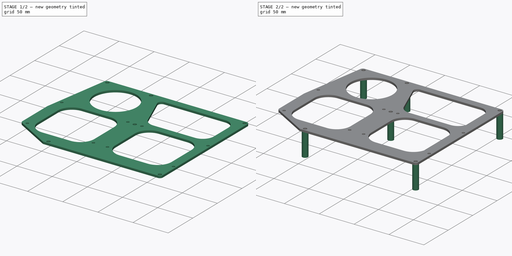
[diagram: build sequence overview — one tinted view per stage of 2, left to right]
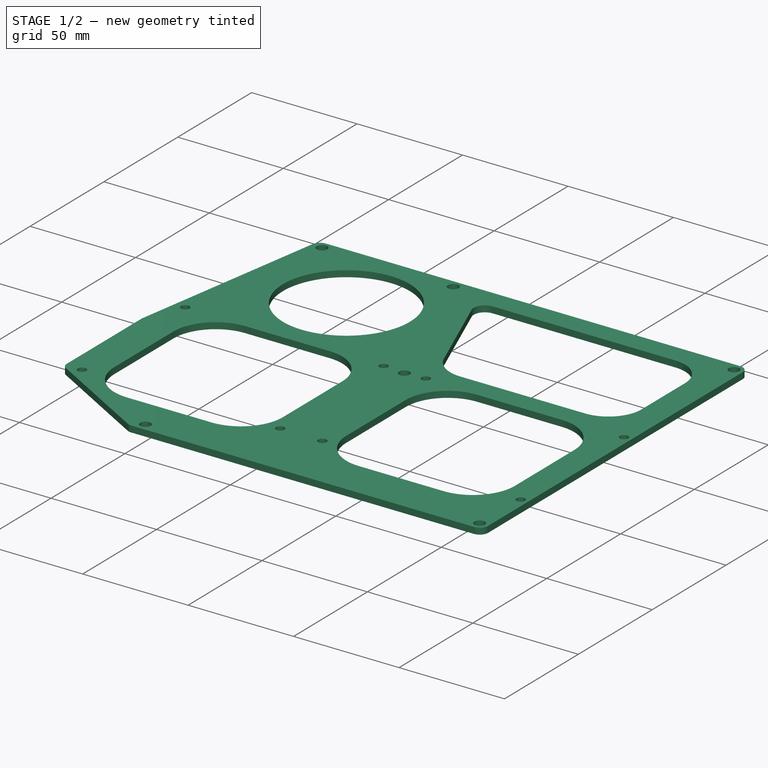
[diagram: stage 1 of 2 — iso view after this stage's code; geometry added in this stage tinted green]
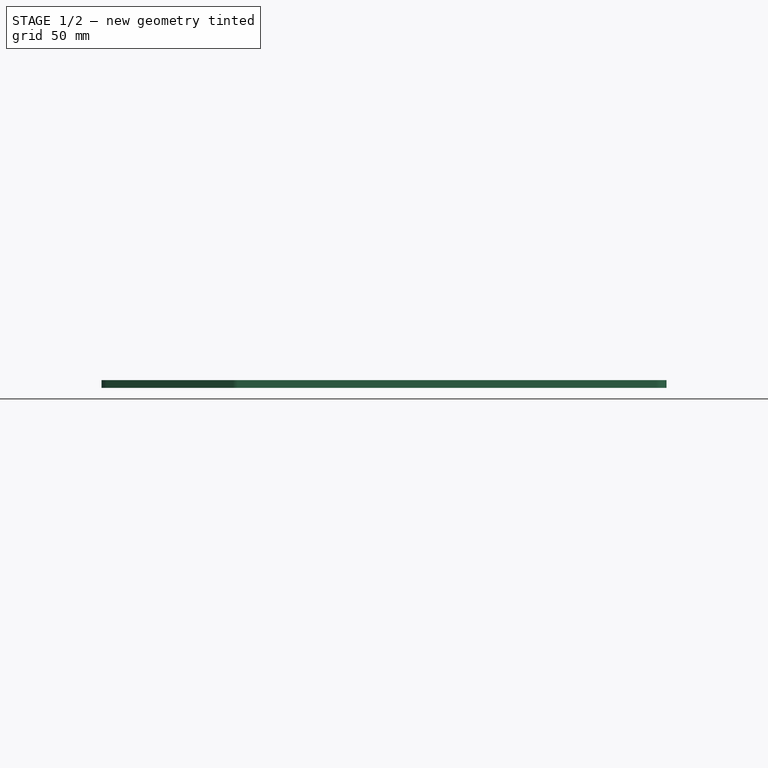
[diagram: stage 1 of 2 — front view after this stage's code; geometry added in this stage tinted green]
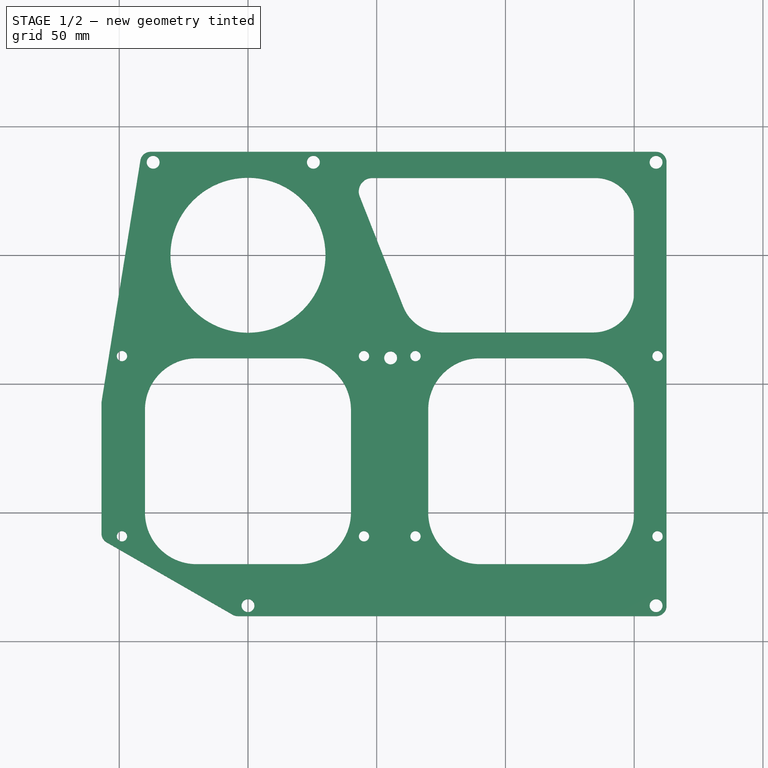
[diagram: stage 1 of 2 — top view after this stage's code; geometry added in this stage tinted green]
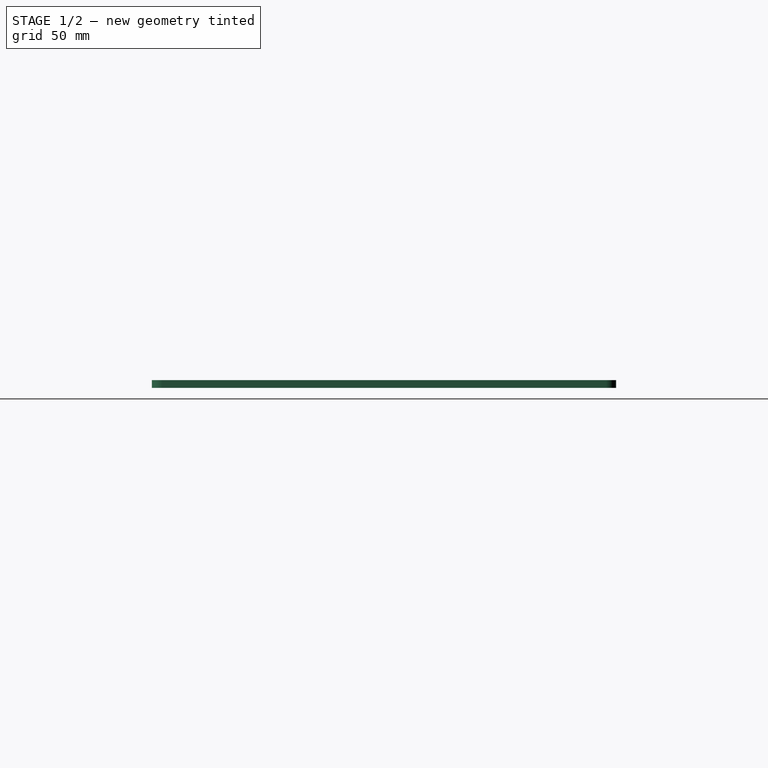
[diagram: stage 1 of 2 — right view after this stage's code; geometry added in this stage tinted green]
FCSTD DOCUMENT  (FreeCAD 0.21R33771 (Git))
Label: FloppyFrame
License: All rights reserved
LicenseURL: https://en.wikipedia.org/wiki/All_rights_reserved
objects: PartDesign::CoordinateSystem×3, Sketcher::SketchObject×2, PartDesign::Pad×2, PartDesign::Plane×1, PartDesign::Fillet×1, PartDesign::Body×1
note: 13 computed .brp shape members not serialized (recipe doc carries the construction recipe); baked Part::Feature solids carry a one-line shape summary decoded from their .brp

FEATURE [Sketcher::SketchObject] Sketch
  AttachmentOffset = pos=(0,0,30) rot=(0,0,1;0rad)
  FullyConstrained = true
  MapMode = 5
  Placement = pos=(0,0,30) rot=(0,0,1;0rad)
  Support = -> [XY_Plane]
  sketch-geometry (61):
    g0: LineSegment StartX=162.56 StartY=-90.17 StartZ=0 EndX=-5.00023 EndY=-90.1697 EndZ=0
    g1: LineSegment StartX=25.4 StartY=86.106 StartZ=0 EndX=158.496 EndY=-86.106 EndZ=0
    g2: Circle CenterX=0.007 CenterY=-86.11 CenterZ=0 NormalX=0 NormalY=0 NormalZ=1 AngleXU=0 Radius=4
    g3: Circle CenterX=55.4 CenterY=10.106 CenterZ=0 NormalX=0 NormalY=0 NormalZ=1 AngleXU=0 Radius=4
    g4: LineSegment StartX=158.496 StartY=86.106 StartZ=0 EndX=0.007 EndY=-86.11 EndZ=0
    g5: LineSegment StartX=0 StartY=-77.3053 StartZ=0 EndX=0 EndY=-96.6911 EndZ=0
    g6: LineSegment StartX=25.4 StartY=86.106 StartZ=0 EndX=25.4 EndY=64.273 EndZ=0
    g7: GeomPoint X=158.496 Y=-86.106 Z=0
    g8: GeomPoint X=0.007 Y=-86.11 Z=0
    g9: Circle CenterX=25.4 CenterY=86.106 CenterZ=0 NormalX=0 NormalY=0 NormalZ=1 AngleXU=0 Radius=2.5
    g10: Circle CenterX=158.496 CenterY=86.106 CenterZ=0 NormalX=0 NormalY=0 NormalZ=1 AngleXU=0 Radius=2.5
    g11: Circle CenterX=55.4 CenterY=10.106 CenterZ=0 NormalX=0 NormalY=0 NormalZ=1 AngleXU=0 Radius=2.5
    g12: Circle CenterX=0.007 CenterY=-86.11 CenterZ=0 NormalX=0 NormalY=0 NormalZ=1 AngleXU=0 Radius=2.5
    g13: Circle CenterX=158.496 CenterY=-86.106 CenterZ=0 NormalX=0 NormalY=0 NormalZ=1 AngleXU=0 Radius=2.5
    g14: Circle CenterX=-36.83 CenterY=86.11 CenterZ=0 NormalX=0 NormalY=0 NormalZ=1 AngleXU=0 Radius=2.5
    g15: LineSegment StartX=-36.83 StartY=86.106 StartZ=0 EndX=-36.83 EndY=64.273 EndZ=0
    g16: LineSegment StartX=-36.83 StartY=86.11 StartZ=0 EndX=0 EndY=-86.2186 EndZ=0
    g17: LineSegment StartX=162.56 StartY=-90.17 StartZ=0 EndX=162.56 EndY=90.17 EndZ=0
    g18: Circle CenterX=159.06 CenterY=-59.17 CenterZ=0 NormalX=0 NormalY=0 NormalZ=1 AngleXU=0 Radius=2
    g19: Circle CenterX=159.06 CenterY=10.83 CenterZ=0 NormalX=0 NormalY=0 NormalZ=1 AngleXU=0 Radius=2
    g20: Circle CenterX=65.06 CenterY=10.83 CenterZ=0 NormalX=0 NormalY=0 NormalZ=1 AngleXU=0 Radius=2
    g21: Circle CenterX=65.06 CenterY=-59.17 CenterZ=0 NormalX=0 NormalY=0 NormalZ=1 AngleXU=0 Radius=2
    g22: Circle CenterX=45.06 CenterY=-59.17 CenterZ=0 NormalX=0 NormalY=0 NormalZ=1 AngleXU=0 Radius=2
    g23: Circle CenterX=45.06 CenterY=10.83 CenterZ=0 NormalX=0 NormalY=0 NormalZ=1 AngleXU=0 Radius=2
    g24: Circle CenterX=-48.94 CenterY=10.83 CenterZ=0 NormalX=0 NormalY=0 NormalZ=1 AngleXU=0 Radius=2
    g25: LineSegment StartX=-56.8981 StartY=-7.15888 StartZ=0 EndX=-56.8981 EndY=-60.3656 EndZ=0
    g26: LineSegment StartX=-5.00023 StartY=-90.1697 StartZ=0 EndX=-56.8981 EndY=-60.3656 EndZ=0
    g27: Circle CenterX=-48.94 CenterY=-59.17 CenterZ=0 NormalX=0 NormalY=0 NormalZ=1 AngleXU=0 Radius=2
    g28: ArcOfCircle CenterX=90 CenterY=-10 CenterZ=0 NormalX=0 NormalY=0 NormalZ=1 AngleXU=0 Radius=20 StartAngle=1.5708 EndAngle=3.14159
    g29: LineSegment StartX=90 StartY=10 StartZ=0 EndX=130 EndY=10 EndZ=0
    g30: ArcOfCircle CenterX=130 CenterY=-10 CenterZ=0 NormalX=0 NormalY=0 NormalZ=1 AngleXU=0 Radius=20 StartAngle=2e-16 EndAngle=1.5708
    g31: LineSegment StartX=150 StartY=-10 StartZ=0 EndX=150 EndY=-50 EndZ=0
    g32: ArcOfCircle CenterX=130 CenterY=-50 CenterZ=0 NormalX=0 NormalY=0 NormalZ=1 AngleXU=0 Radius=20 StartAngle=4.71239 EndAngle=6.28319
    g33: LineSegment StartX=130 StartY=-70 StartZ=0 EndX=90 EndY=-70 EndZ=0
    g34: ArcOfCircle CenterX=90 CenterY=-50 CenterZ=0 NormalX=0 NormalY=0 NormalZ=1 AngleXU=0 Radius=20 StartAngle=3.14159 EndAngle=4.71239
    g35: LineSegment StartX=70 StartY=-50 StartZ=0 EndX=70 EndY=-10 EndZ=0
    g36: GeomPoint X=70 Y=10 Z=0
    g37: GeomPoint X=150 Y=-70 Z=0
    g38: LineSegment StartX=-40 StartY=-50 StartZ=0 EndX=-40 EndY=-10 EndZ=0
    g39: ArcOfCircle CenterX=-20 CenterY=-10 CenterZ=0 NormalX=0 NormalY=0 NormalZ=1 AngleXU=0 Radius=20 StartAngle=1.5708 EndAngle=3.14159
    g40: LineSegment StartX=-20 StartY=9.99999 StartZ=0 EndX=20 EndY=9.99999 EndZ=0
    g41: ArcOfCircle CenterX=20 CenterY=-10 CenterZ=0 NormalX=0 NormalY=0 NormalZ=1 AngleXU=0 Radius=20 StartAngle=2e-16 EndAngle=1.5708
    g42: LineSegment StartX=40 StartY=-10 StartZ=0 EndX=40 EndY=-50 EndZ=0
    g43: ArcOfCircle CenterX=20 CenterY=-50 CenterZ=0 NormalX=0 NormalY=0 NormalZ=1 AngleXU=0 Radius=20 StartAngle=4.71239 EndAngle=6.28319
    g44: LineSegment StartX=20 StartY=-70 StartZ=0 EndX=-20 EndY=-70 EndZ=0
    g45: ArcOfCircle CenterX=-20 CenterY=-50 CenterZ=0 NormalX=0 NormalY=0 NormalZ=1 AngleXU=0 Radius=20 StartAngle=3.14159 EndAngle=4.71239
    g46: LineSegment StartX=-41.2412 StartY=90.17 StartZ=0 EndX=162.56 EndY=90.17 EndZ=0
    g47: LineSegment StartX=-48.94 StartY=10.83 StartZ=0 EndX=-36.83 EndY=86.11 EndZ=0
    g48: LineSegment StartX=-56.8981 StartY=-7.15888 StartZ=0 EndX=-41.2412 EndY=90.17 EndZ=0
    g49: LineSegment StartX=0 StartY=-86.2186 StartZ=0 EndX=-48.94 EndY=-59.17 EndZ=0
    g50: LineSegment StartX=55.4 StartY=10.106 StartZ=0 EndX=25.4 EndY=86.106 EndZ=0
    g51: ArcOfCircle CenterX=134.198 CenterY=35.8021 CenterZ=0 NormalX=0 NormalY=0 NormalZ=1 AngleXU=0 Radius=15.8021 StartAngle=4.71239 EndAngle=6.28319
    g52: LineSegment StartX=134.198 StartY=20 StartZ=0 EndX=75 EndY=20 EndZ=0
    g53: ArcOfCircle CenterX=75 CenterY=35.8021 CenterZ=0 NormalX=0 NormalY=0 NormalZ=1 AngleXU=0 Radius=15.8021 StartAngle=3.51755 EndAngle=4.71239
    g54: LineSegment StartX=60.3016 StartY=30.0001 StartZ=0 EndX=43.393 EndY=72.8352 EndZ=0
    g55: ArcOfCircle CenterX=48.2676 CenterY=74.7594 CenterZ=0 NormalX=0 NormalY=0 NormalZ=1 AngleXU=0 Radius=5.24065 StartAngle=1.5708 EndAngle=3.51755
    g56: LineSegment StartX=48.2676 StartY=80 StartZ=0 EndX=135 EndY=80 EndZ=0
    g57: ArcOfCircle CenterX=135 CenterY=65 CenterZ=0 NormalX=0 NormalY=0 NormalZ=1 AngleXU=0 Radius=15 StartAngle=0 EndAngle=1.5708
    g58: LineSegment StartX=150 StartY=65 StartZ=0 EndX=150 EndY=35.8021 EndZ=0
    g59: GeomPoint X=150 Y=20 Z=0
    g60: Circle CenterX=0 CenterY=50 CenterZ=0 NormalX=0 NormalY=0 NormalZ=1 AngleXU=0 Radius=30.1061
  constraints (136):
    c: DistanceY(g17,g2) = 4.06
    c: Diameter(g2) = 8
    c: Block(g2)
    c: Equal(g3,g2)
    c: Coincident(g4,g2)
    c: Block(g6)
    c: Block(g4)
    c: Block(g1)
    c: Coincident(g7,g1)
    c: Coincident(g8,g2)
    c: Coincident(g9,g1)
    c: Diameter(g9) = 5
    c: Coincident(g10,g4)
    c: Equal(g10,g9)
    c: Coincident(g11,g3)
    c: Coincident(g12,g2)
    c: Equal(g12,g11)
    c: Equal(g11,g9)
    c: Block(g5)
    c: Equal(g9,g14) = 5
    c: Block(g14)
    c: Block(g15)
    c: DistanceY(g14,g46) = 4.06
    c: Coincident(g16,g14)
    c: Block(g16)
    c: DistanceY(g11,g9) = 76
    c: DistanceX(g9,g11) = 30
    c: Vertical(g17)
    c: Block(g17)
    c: Block(g13)
    c: Diameter(g18) = 4
    c: DistanceY(g17,g18) = 31
    c: DistanceX(g18,g17) = 3.5
    c: Equal(g18,g19) = 4
    c: DistanceY(g18,g19) = 70
    c: Block(g19)
    c: Equal(g18,g21) = 4
    c: Equal(g21,g20) = 4
    c: DistanceY(g21,g20) = 70
    c: DistanceX(g20,g19) = 94
    c: Block(g18)
    c: Block(g21)
    c: Block(g22)
    c: DistanceY(g22,g23) = 70
    c: Block(g23)
    c: DistanceX(g24,g23) = 94
    c: Block(g24)
    c: Vertical(g25)
    c: Coincident(g26,g0)
    c: Coincident(g25,g26)
    c: Block(g27)
    c: Tangent(g28,g29) = 1.5708
    c: Tangent(g29,g30) = 1.5708
    c: Tangent(g30,g31) = 1.5708
    c: Tangent(g31,g32) = 1.5708
    c: Tangent(g32,g33) = 1.5708
    c: Tangent(g33,g34) = 1.5708
    c: Tangent(g34,g35) = 1.5708
    c: Tangent(g35,g28) = 1.5708
    c: Horizontal(g29)
    c: Horizontal(g33)
    c: Vertical(g31)
    c: Vertical(g35)
    c: Equal(g28,g30)
    c: Equal(g30,g32)
    c: Equal(g32,g34)
    c: PointOnObject(g36,g29)
    c: PointOnObject(g36,g35)
    c: PointOnObject(g37,g31)
    c: PointOnObject(g37,g33)
    c: Block(g29)
    c: Block(g30)
    c: Block(g31)
    c: Block(g32)
    c: Block(g33)
    c: Block(g34)
    c: Block(g35)
    c: Block(g28)
    c: Tangent(g39,g40) = 1.5708
    c: Tangent(g40,g41) = 1.5708
    c: Tangent(g41,g42) = 1.5708
    c: Tangent(g42,g43) = 1.5708
    c: Tangent(g43,g44) = 1.5708
    c: Tangent(g44,g45) = 1.5708
    c: Tangent(g45,g38) = 1.5708
    c: Tangent(g38,g39) = 1.5708
    c: Horizontal(g40)
    c: Horizontal(g44)
    c: Vertical(g42)
    c: Vertical(g38)
    c: Equal(g39,g41)
    c: Equal(g41,g43)
    c: Equal(g43,g45)
    c: Block(g40)
    c: Block(g41)
    c: Block(g42)
    c: Block(g43)
    c: Block(g44)
    c: Block(g45)
    c: Block(g38)
    c: Block(g39)
    c: Coincident(g46,g17)
    c: Horizontal(g46)
    c: Coincident(g47,g24)
    c: Coincident(g47,g14)
    c: Coincident(g48,g25)
    c: Coincident(g48,g46)
    c: Block(g47)
    c: Parallel(g48,g47)
    c: Distance(g24,g48) = 5
    c: Coincident(g49,g16)
    c: Block(g49)
    c: Distance(g27,g26) = 5
    c: Block(g25)
    c: Coincident(g0,g17)
    c: Block(g0)
    c: Coincident(g50,g11)
    c: Coincident(g50,g9)
    c: Block(g50)
    c: Tangent(g52,g53) = 1.5708
    c: Tangent(g53,g54) = 1.5708
    c: Tangent(g54,g55) = 1.5708
    c: Tangent(g55,g56) = 1.5708
    c: Tangent(g56,g57) = 1.5708
    c: Horizontal(g56)
    c: Equal(g51,g53)
    c: PointOnObject(g59,g52)
    c: PointOnObject(g59,g58)
    c: Block(g52)
    c: Block(g51)
    c: Block(g58)
    c: Block(g57)
    c: Block(g9)
    c: Block(g55)
    c: Block(g53)
    c: Block(g60)
FEATURE [PartDesign::Pad] Pad  label="PlatePad"
  Direction = (0,0,1)
  Length = 3
  Length2 = 10
  Profile = -> Sketch
  ReferenceAxis = -> Sketch [N_Axis]
  Refine = true
  Type = 0
FEATURE [PartDesign::Plane] DatumPlane
  Length = 60
  MapMode = 5
  Placement = pos=(0,0,30) rot=(1,0,0;3.14159rad)
  ResizeMode = 0
  Support = -> [Pad]
  Width = 60
FEATURE [Sketcher::SketchObject] Sketch001
  AttachmentOffset = pos=(0,0,0) rot=(1,0,0;3.14159rad)
  FullyConstrained = true
  MapMode = 5
  Placement = pos=(0,0,30) rot=(0,0,1;0rad)
  Support = -> [DatumPlane]
  sketch-geometry (6):
    g0: Circle CenterX=158.496 CenterY=-86.106 CenterZ=0 NormalX=0 NormalY=0 NormalZ=1 AngleXU=0 Radius=4
    g1: Circle CenterX=0.007 CenterY=-86.11 CenterZ=0 NormalX=0 NormalY=0 NormalZ=1 AngleXU=0 Radius=4
    g2: Circle CenterX=55.4 CenterY=10.106 CenterZ=0 NormalX=0 NormalY=0 NormalZ=1 AngleXU=0 Radius=4
    g3: Circle CenterX=-36.83 CenterY=86.106 CenterZ=0 NormalX=0 NormalY=0 NormalZ=1 AngleXU=0 Radius=4
    g4: Circle CenterX=25.4 CenterY=86.106 CenterZ=0 NormalX=0 NormalY=0 NormalZ=1 AngleXU=0 Radius=4
    g5: Circle CenterX=158.496 CenterY=86.106 CenterZ=0 NormalX=0 NormalY=0 NormalZ=1 AngleXU=0 Radius=4
  constraints (11):
    c: Equal(g3,g4)
    c: Equal(g3,g5)
    c: Equal(g3,g2)
    c: Equal(g3,g1)
    c: Equal(g3,g0)
    c: Block(g0)
    c: Block(g1)
    c: Block(g3)
    c: Block(g4)
    c: Block(g2)
    c: Block(g5)
FEATURE [PartDesign::Fillet] Fillet
  Base = -> Pad [Edge11,Edge8,Edge5,Edge14,Edge1,Edge2]
  BaseFeature = -> Pad
  Radius = 4
  Refine = true
  SupportTransform = false
  UseAllEdges = false
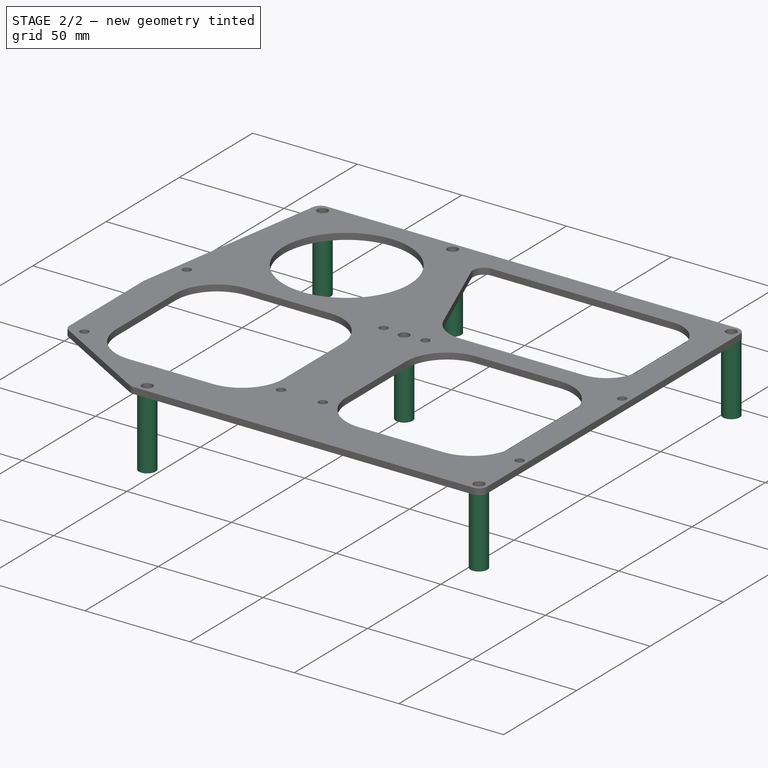
[diagram: stage 2 of 2 — iso view after this stage's code; geometry added in this stage tinted green]
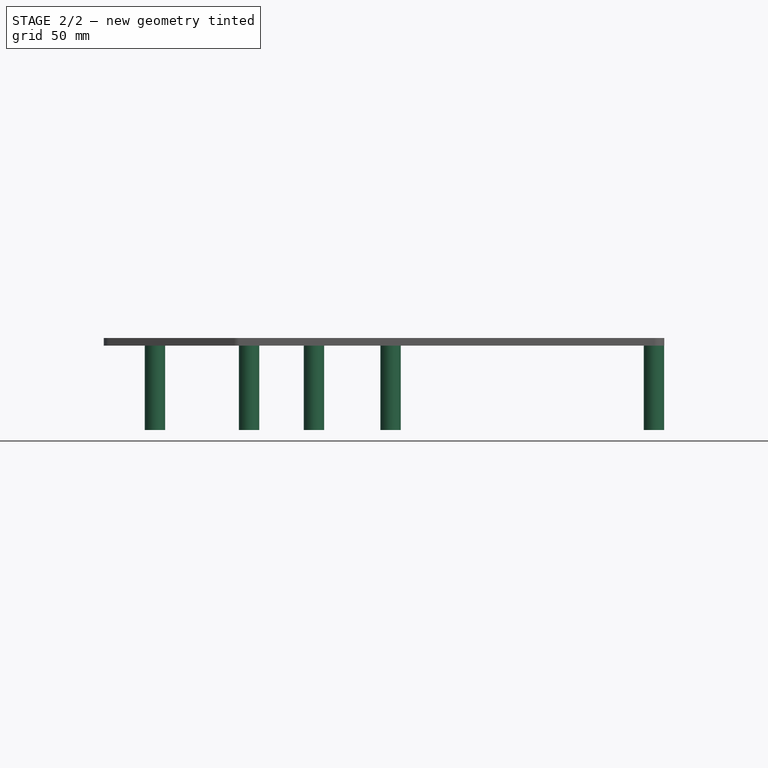
[diagram: stage 2 of 2 — front view after this stage's code; geometry added in this stage tinted green]
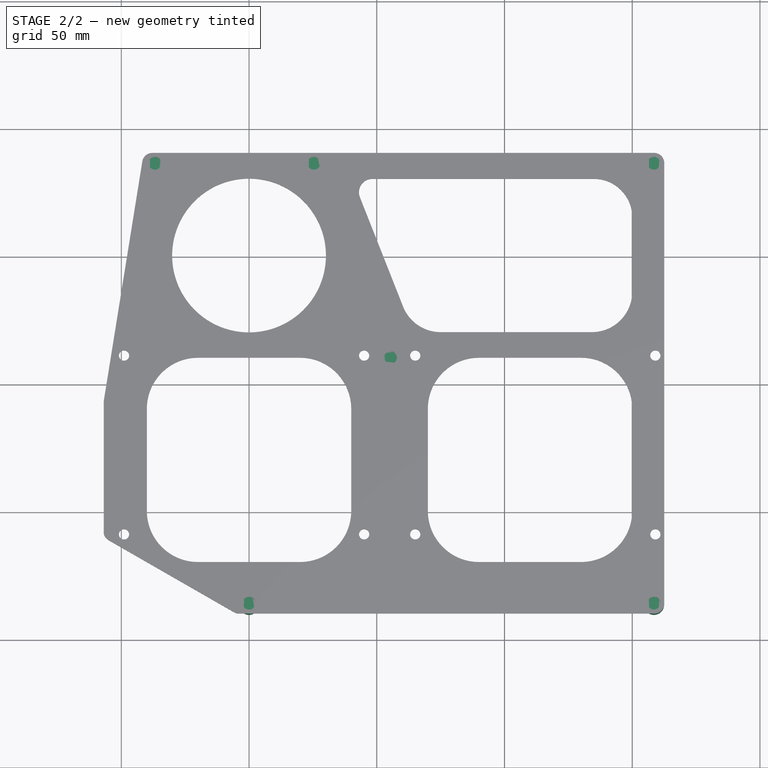
[diagram: stage 2 of 2 — top view after this stage's code; geometry added in this stage tinted green]
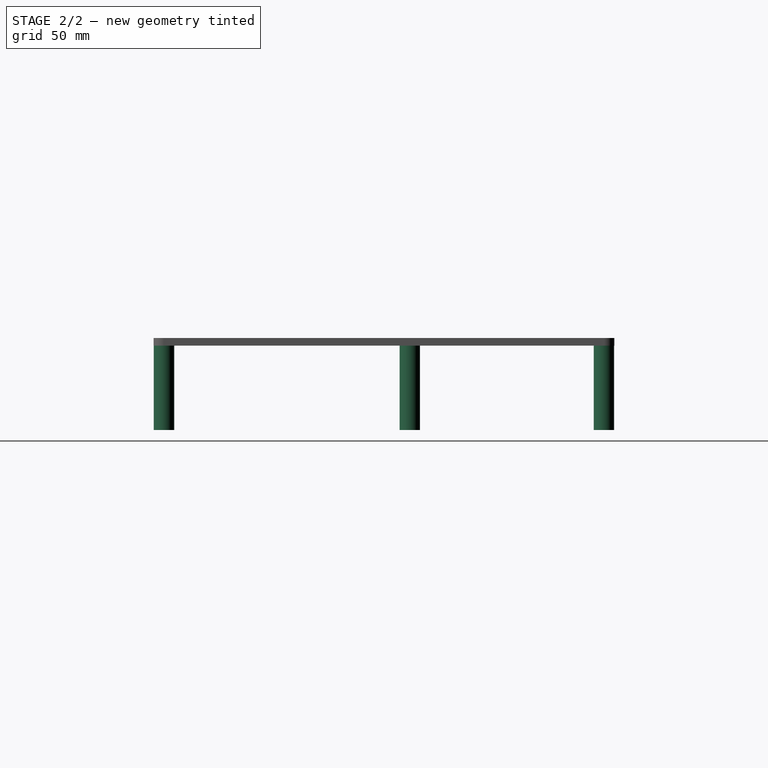
[diagram: stage 2 of 2 — right view after this stage's code; geometry added in this stage tinted green]
FEATURE [PartDesign::Pad] Pad001  label="StandsPad"
  BaseFeature = -> Fillet
  Direction = (0,1e-16,1)
  Length = 33
  Length2 = 10
  Profile = -> Sketch001
  ReferenceAxis = -> Sketch001 [N_Axis]
  Refine = true
  Reversed = true
  Type = 0
FEATURE [PartDesign::CoordinateSystem] Local_CS  label="FloppyBMountPoint"
  AttacherType = Attacher::AttachEngine3D
  AttachmentOffset = pos=(0,0,0) rot=(0,0,-1;1.5708rad)
  MapMode = 11
  Placement = pos=(159.06,-59.17,33) rot=(0,0,1;0rad)
  Support = -> [Pad001]
FEATURE [PartDesign::CoordinateSystem] Local_CS001  label="FloppyAMountPoint"
  AttacherType = Attacher::AttachEngine3D
  AttachmentOffset = pos=(0,0,0) rot=(0,0,-1;1.5708rad)
  MapMode = 11
  Placement = pos=(45.06,-59.17,33) rot=(0,0,1;0rad)
  Support = -> [Pad001]
FEATURE [PartDesign::CoordinateSystem] Local_CS002  label="MountLCS"
  AttacherType = Attacher::AttachEngine3D
  AttachmentOffset = pos=(0,0,0) rot=(0,0,-1;1.5708rad)
  MapMode = 11
  Placement = pos=(158.496,-86.106,-3) rot=(0,0,1;0rad)
  Support = -> [Pad001]
FEATURE [PartDesign::Body] Body  label="FloppyFrameBody"
  Group = -> [Sketch,Pad,Local_CS,Local_CS001,Local_CS002,Sketch001,DatumPlane,Fillet,Pad001]
  Origin = -> Origin
  Tip = -> Fillet
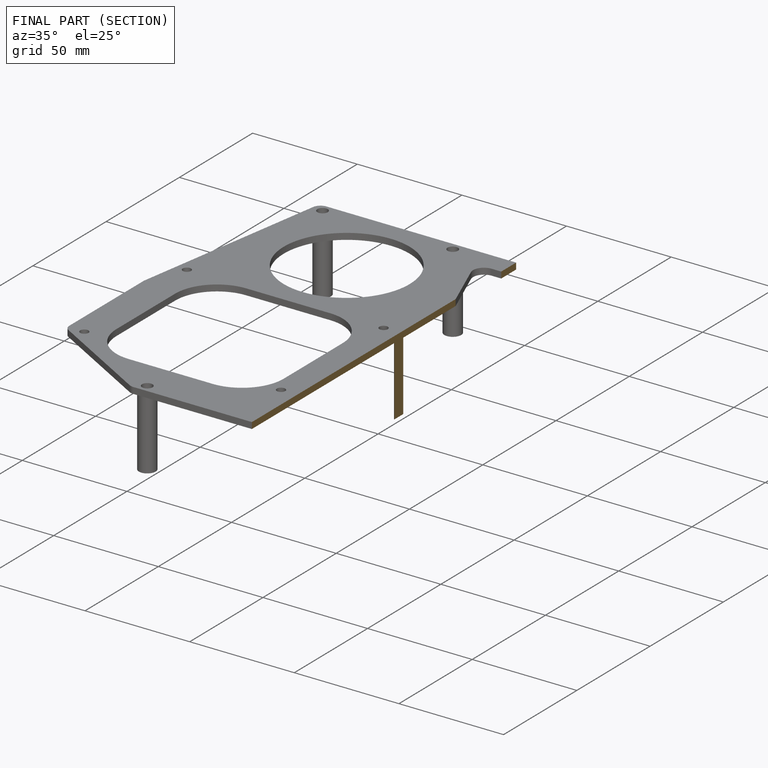
[diagram: finished part — half-section view (interior)]
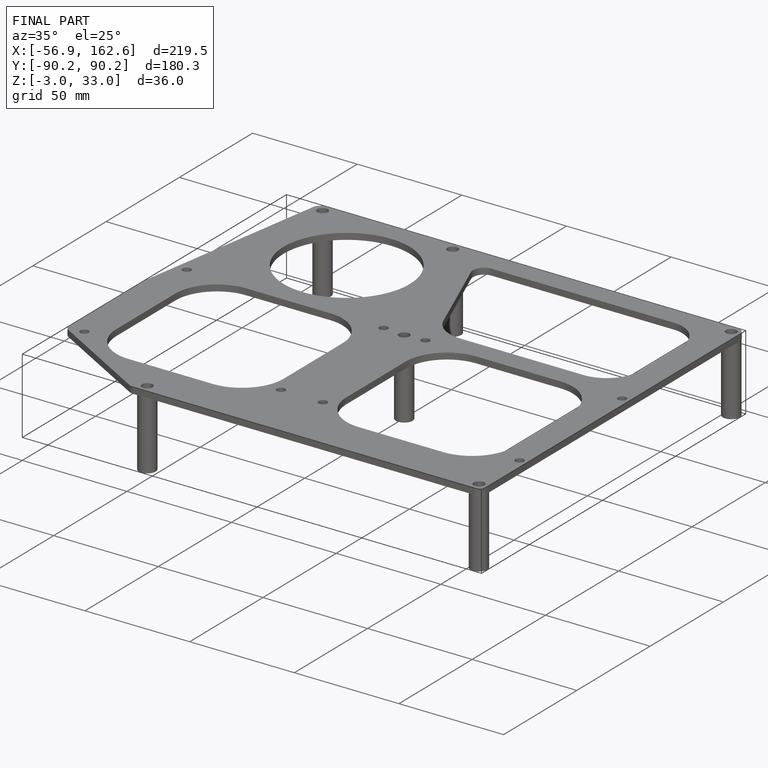
[diagram: finished part — iso view with bounding-box wireframe]
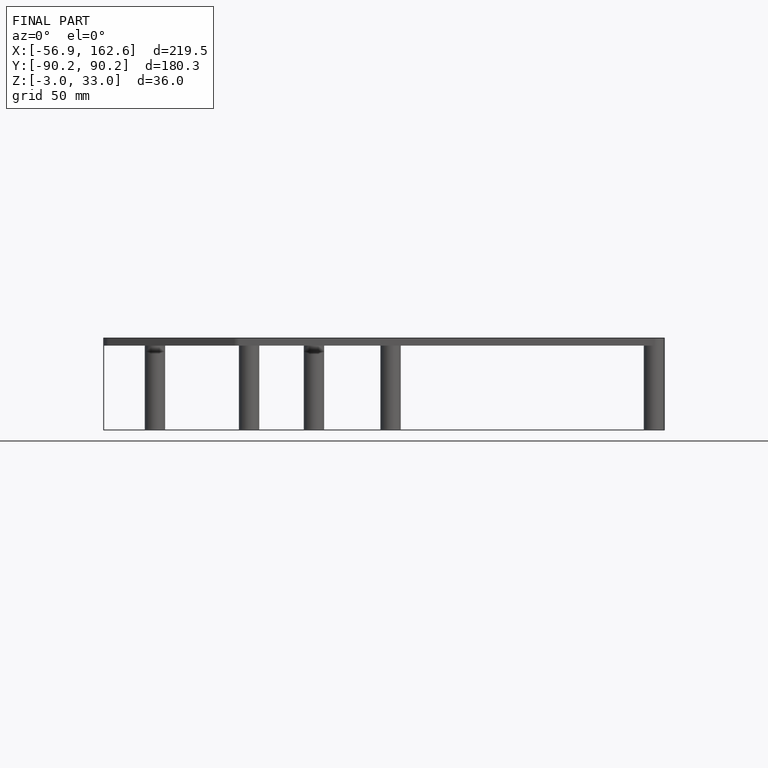
[diagram: finished part — front view with bounding-box wireframe]
